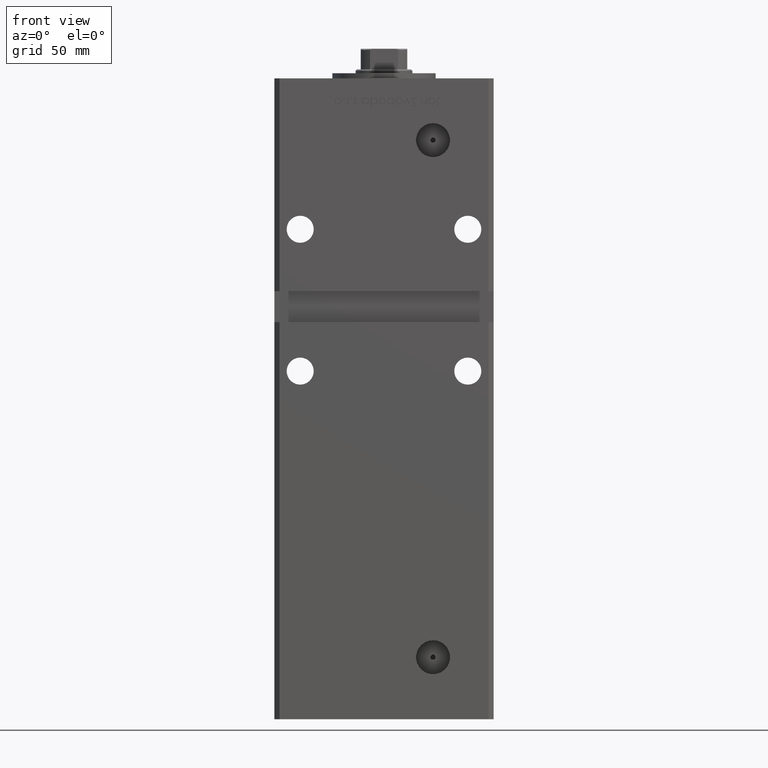
[diagram: clean part render]
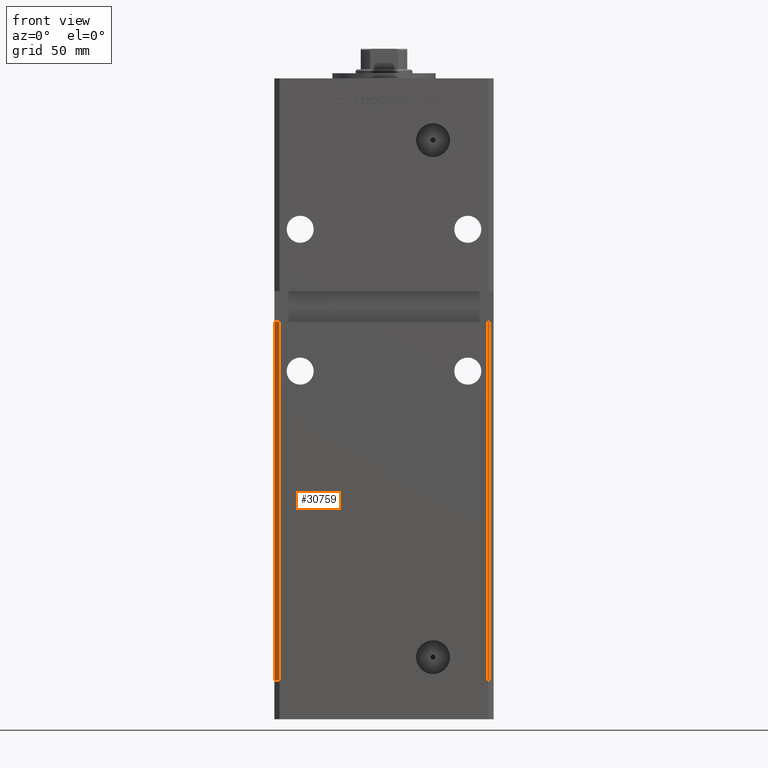
[diagram: same view with one face highlighted and labeled with its STEP entity id]
A machine part, front view. The second image highlights one B-rep face of the part: STEP entity #30759.
In plain terms, the highlighted planar face has unit normal (0.7071, 0.7071, 0).
Its self-contained STEP definition (entity closure, byte-faithful):
#722 = DIRECTION ( 'NONE',  ( -0.000000000000000000, -0.000000000000000000, -1.000000000000000000 ) ) ;
#1238 = VERTEX_POINT ( 'NONE', #52867 ) ;
#1937 = LINE ( 'NONE', #27194, #13380 ) ;
#2331 = CARTESIAN_POINT ( 'NONE',  ( -42.49999999999998579, -35.50000000000000711, 218.5000000000000000 ) ) ;
#3275 = DIRECTION ( 'NONE',  ( 0.7071067811865474617, -0.7071067811865474617, 0.000000000000000000 ) ) ;
#3327 = PLANE ( 'NONE',  #13802 ) ;
#3766 = ORIENTED_EDGE ( 'NONE', *, *, #38313, .T. ) ;
#6318 = EDGE_CURVE ( 'NONE', #42123, #1238, #1937, .T. ) ;
#7367 = FACE_OUTER_BOUND ( 'NONE', #40967, .T. ) ;
#7728 = VECTOR ( 'NONE', #722, 1000.000000000000000 ) ;
#8264 = CARTESIAN_POINT ( 'NONE',  ( -40.49999999999998579, -37.50000000000000711, 218.5000000000000000 ) ) ;
#10925 = LINE ( 'NONE', #2331, #16781 ) ;
#12858 = LINE ( 'NONE', #37355, #32918 ) ;
#13380 = VECTOR ( 'NONE', #3275, 1000.000000000000114 ) ;
#13802 = AXIS2_PLACEMENT_3D ( 'NONE', #19708, #45501, #33142 ) ;
#16781 = VECTOR ( 'NONE', #26496, 1000.000000000000000 ) ;
#17406 = CARTESIAN_POINT ( 'NONE',  ( -40.49999999999998579, -37.50000000000000711, 139.0000000000000284 ) ) ;
#17752 = VERTEX_POINT ( 'NONE', #50173 ) ;
#19708 = CARTESIAN_POINT ( 'NONE',  ( -42.49999999999998579, -35.50000000000000711, 218.5000000000000000 ) ) ;
#23569 = VERTEX_POINT ( 'NONE', #17406 ) ;
#26280 = CARTESIAN_POINT ( 'NONE',  ( -42.49999999999998579, -35.50000000000000711, 0.000000000000000000 ) ) ;
#26496 = DIRECTION ( 'NONE',  ( -0.000000000000000000, -0.000000000000000000, -1.000000000000000000 ) ) ;
#26790 = ORIENTED_EDGE ( 'NONE', *, *, #28329, .F. ) ;
#27194 = CARTESIAN_POINT ( 'NONE',  ( -42.49999999999998579, -35.50000000000000711, 0.000000000000000000 ) ) ;
#28329 = EDGE_CURVE ( 'NONE', #23569, #1238, #49399, .T. ) ;
#30759 = ADVANCED_FACE ( 'NONE', ( #7367 ), #3327, .F. ) ;
#32918 = VECTOR ( 'NONE', #42170, 1000.000000000000114 ) ;
#33142 = DIRECTION ( 'NONE',  ( -0.7071067811865474617, 0.7071067811865474617, 0.000000000000000000 ) ) ;
#34624 = ORIENTED_EDGE ( 'NONE', *, *, #48450, .T. ) ;
#37355 = CARTESIAN_POINT ( 'NONE',  ( -42.49999999999998579, -35.50000000000000711, 139.0000000000000284 ) ) ;
#38313 = EDGE_CURVE ( 'NONE', #23569, #17752, #12858, .T. ) ;
#40967 = EDGE_LOOP ( 'NONE', ( #26790, #3766, #34624, #44620 ) ) ;
#42123 = VERTEX_POINT ( 'NONE', #26280 ) ;
#42170 = DIRECTION ( 'NONE',  ( -0.7071067811865474617, 0.7071067811865474617, 0.000000000000000000 ) ) ;
#44620 = ORIENTED_EDGE ( 'NONE', *, *, #6318, .T. ) ;
#45501 = DIRECTION ( 'NONE',  ( 0.7071067811865475727, 0.7071067811865475727, -0.000000000000000000 ) ) ;
#48450 = EDGE_CURVE ( 'NONE', #17752, #42123, #10925, .T. ) ;
#49399 = LINE ( 'NONE', #8264, #7728 ) ;
#50173 = CARTESIAN_POINT ( 'NONE',  ( -42.49999999999998579, -35.49999999999996447, 139.0000000000000284 ) ) ;
#52867 = CARTESIAN_POINT ( 'NONE',  ( -40.49999999999998579, -37.50000000000000711, 0.000000000000000000 ) ) ;